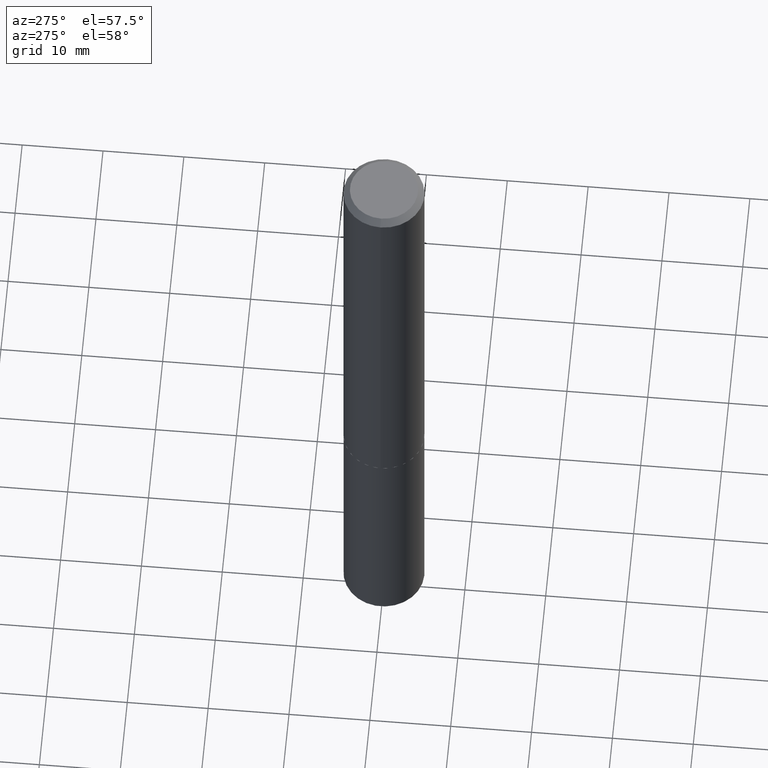
[diagram: clean part render]
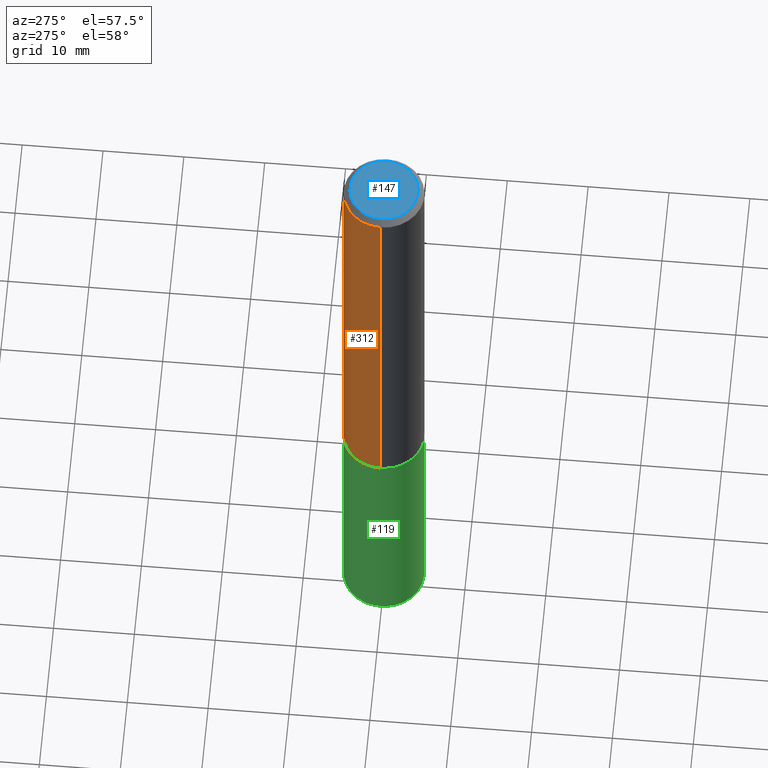
[diagram: same view with three faces highlighted in distinct colors, each labeled with its STEP entity id]
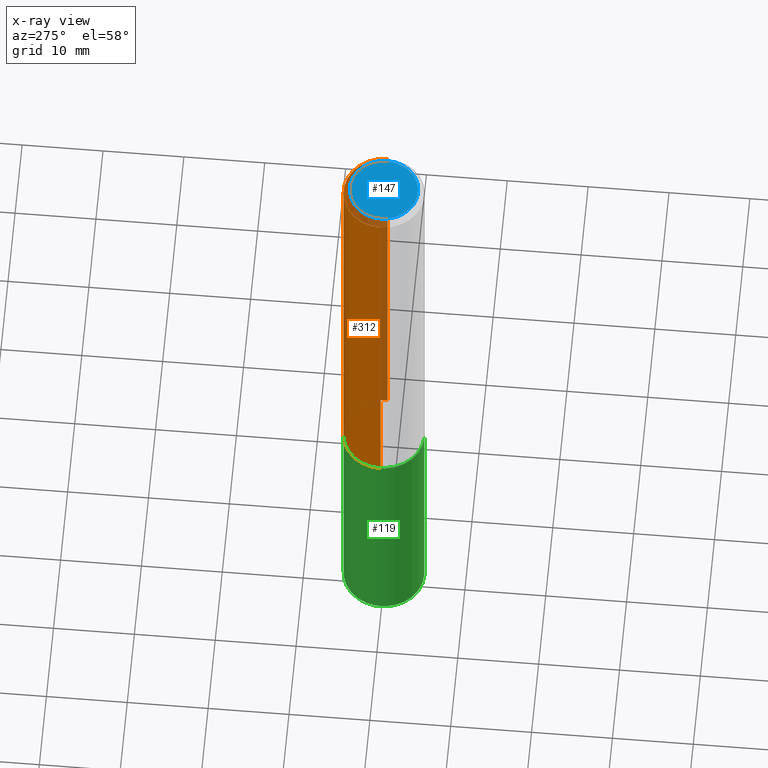
[diagram: x-ray of the same camera — body ghosted, the three highlighted faces saturated]
A machine part, auxiliary view with three faces highlighted in distinct colors.
The next image is the same camera in x-ray (body ghosted, the three faces saturated) — at least one of them is partly hidden behind the body in this view.
Their STEP definitions:

[orange] entity #312 — the highlighted cylindrical surface (partial cylindrical patch) has radius 5 mm, axis along (-0, 0, 1).
#6 = FACE_OUTER_BOUND ( 'NONE', #207, .T. ) ;
#7 = DIRECTION ( 'NONE',  ( -2.445468806185136877E-29, 3.491481338843145188E-15, 1.000000000000000000 ) ) ;
#9 = DIRECTION ( 'NONE',  ( -2.445468806185136597E-29, 3.491481338843145583E-15, 1.000000000000000000 ) ) ;
#21 = ORIENTED_EDGE ( 'NONE', *, *, #296, .F. ) ;
#55 = LINE ( 'NONE', #139, #281 ) ;
#60 = CARTESIAN_POINT ( 'NONE',  ( 0.1968500000000000250, -1.483704994941390709E-15, -0.03125000000000022898 ) ) ;
#63 = DIRECTION ( 'NONE',  ( -2.445468806185136597E-29, 3.491481338843145583E-15, 1.000000000000000000 ) ) ;
#72 = ORIENTED_EDGE ( 'NONE', *, *, #94, .F. ) ;
#75 = LINE ( 'NONE', #307, #152 ) ;
#94 = EDGE_CURVE ( 'NONE', #386, #320, #114, .T. ) ;
#96 = VERTEX_POINT ( 'NONE', #177 ) ;
#114 = CIRCLE ( 'NONE', #254, 0.1968500000000000250 ) ;
#134 = DIRECTION ( 'NONE',  ( -2.445468806185136877E-29, 3.491481338843145188E-15, 1.000000000000000000 ) ) ;
#136 = DIRECTION ( 'NONE',  ( -2.445468806185136597E-29, 3.491481338843145583E-15, 1.000000000000000000 ) ) ;
#139 = CARTESIAN_POINT ( 'NONE',  ( -0.1968500000000001915, 1.398703375343758577E-15, -9.682923725166790684E-30 ) ) ;
#146 = CIRCLE ( 'NONE', #376, 0.1968500000000003303 ) ;
#152 = VECTOR ( 'NONE', #134, 39.37007874015748143 ) ;
#174 = DIRECTION ( 'NONE',  ( 1.000000000000000000, -6.982962677686265922E-15, 0.000000000000000000 ) ) ;
#177 = CARTESIAN_POINT ( 'NONE',  ( -0.1968500000000003303, -6.297219791734301467E-15, -2.204199999999999715 ) ) ;
#179 = VERTEX_POINT ( 'NONE', #191 ) ;
#191 = CARTESIAN_POINT ( 'NONE',  ( 0.1968500000000003303, -9.070519370180605597E-15, -2.204199999999999715 ) ) ;
#207 = EDGE_LOOP ( 'NONE', ( #371, #314, #72, #21 ) ) ;
#220 = CARTESIAN_POINT ( 'NONE',  ( -0.1968500000000000250, -2.503812604114694813E-15, -0.03125000000000022898 ) ) ;
#233 = AXIS2_PLACEMENT_3D ( 'NONE', #370, #136, #365 ) ;
#248 = CYLINDRICAL_SURFACE ( 'NONE', #233, 0.1968500000000001915 ) ;
#254 = AXIS2_PLACEMENT_3D ( 'NONE', #348, #63, #174 ) ;
#258 = EDGE_CURVE ( 'NONE', #179, #96, #146, .T. ) ;
#273 = DIRECTION ( 'NONE',  ( 1.000000000000000000, -6.982962677686271444E-15, 0.000000000000000000 ) ) ;
#281 = VECTOR ( 'NONE', #7, 39.37007874015748143 ) ;
#283 = EDGE_CURVE ( 'NONE', #96, #320, #55, .T. ) ;
#296 = EDGE_CURVE ( 'NONE', #179, #386, #75, .T. ) ;
#307 = CARTESIAN_POINT ( 'NONE',  ( 0.1968500000000001915, -1.374596203102542989E-15, 9.598753983154309266E-30 ) ) ;
#312 = ADVANCED_FACE ( 'NONE', ( #6 ), #248, .T. ) ;
#314 = ORIENTED_EDGE ( 'NONE', *, *, #283, .T. ) ;
#320 = VERTEX_POINT ( 'NONE', #220 ) ;
#336 = CARTESIAN_POINT ( 'NONE',  ( 5.390302342593277355E-29, -7.695923167078060833E-15, -2.204199999999999715 ) ) ;
#348 = CARTESIAN_POINT ( 'NONE',  ( 7.642090019328607917E-31, -1.091087918388491006E-16, -0.03125000000000022898 ) ) ;
#365 = DIRECTION ( 'NONE',  ( 1.000000000000000000, -6.982962677686266711E-15, 4.876176775795935793E-29 ) ) ;
#370 = CARTESIAN_POINT ( 'NONE',  ( 0.000000000000000000, 0.000000000000000000, 0.000000000000000000 ) ) ;
#371 = ORIENTED_EDGE ( 'NONE', *, *, #258, .T. ) ;
#376 = AXIS2_PLACEMENT_3D ( 'NONE', #336, #9, #273 ) ;
#386 = VERTEX_POINT ( 'NONE', #60 ) ;

[blue] entity #147 — the highlighted planar face has unit normal (0, -0, -1).
#35 = DIRECTION ( 'NONE',  ( 1.000000000000000000, -6.982962677686266711E-15, 4.876184333594739131E-29 ) ) ;
#44 = AXIS2_PLACEMENT_3D ( 'NONE', #84, #193, #269 ) ;
#73 = DIRECTION ( 'NONE',  ( -1.000000000000000000, 6.982962677686265922E-15, -4.876176775795935793E-29 ) ) ;
#84 = CARTESIAN_POINT ( 'NONE',  ( -5.839929314523301814E-48, 8.337871319499262079E-34, 2.388061258337385659E-19 ) ) ;
#97 = CARTESIAN_POINT ( 'NONE',  ( -0.1655999999999999972, 1.210933015344269141E-15, 2.388061258254609190E-19 ) ) ;
#116 = ORIENTED_EDGE ( 'NONE', *, *, #145, .T. ) ;
#125 = VERTEX_POINT ( 'NONE', #97 ) ;
#130 = CARTESIAN_POINT ( 'NONE',  ( -2.919964657261650907E-48, 4.168935659749631040E-34, 1.194030629168692829E-19 ) ) ;
#145 = EDGE_CURVE ( 'NONE', #361, #125, #285, .T. ) ;
#147 = ADVANCED_FACE ( 'NONE', ( #295 ), #154, .F. ) ;
#154 = PLANE ( 'NONE',  #337 ) ;
#175 = CARTESIAN_POINT ( 'NONE',  ( -5.839929314523301814E-48, 8.337871319499262079E-34, 2.388061258337385659E-19 ) ) ;
#193 = DIRECTION ( 'NONE',  ( -2.445468806185136597E-29, 3.491481338843145583E-15, 1.000000000000000000 ) ) ;
#203 = ORIENTED_EDGE ( 'NONE', *, *, #266, .T. ) ;
#225 = EDGE_LOOP ( 'NONE', ( #203, #116 ) ) ;
#266 = EDGE_CURVE ( 'NONE', #125, #361, #358, .T. ) ;
#269 = DIRECTION ( 'NONE',  ( 1.000000000000000000, -6.982962677686266711E-15, 4.876184333594739131E-29 ) ) ;
#285 = CIRCLE ( 'NONE', #344, 0.1655999999999999972 ) ;
#292 = DIRECTION ( 'NONE',  ( -2.445468806185136597E-29, 3.491481338843145583E-15, 1.000000000000000000 ) ) ;
#295 = FACE_OUTER_BOUND ( 'NONE', #225, .T. ) ;
#325 = DIRECTION ( 'NONE',  ( 2.438088387897960049E-29, -3.491481338843145188E-15, -1.000000000000000000 ) ) ;
#337 = AXIS2_PLACEMENT_3D ( 'NONE', #130, #325, #73 ) ;
#344 = AXIS2_PLACEMENT_3D ( 'NONE', #175, #292, #35 ) ;
#358 = CIRCLE ( 'NONE', #44, 0.1655999999999999972 ) ;
#361 = VERTEX_POINT ( 'NONE', #375 ) ;
#375 = CARTESIAN_POINT ( 'NONE',  ( 0.1655999999999999972, -1.297848145565570390E-15, 2.388061258423196912E-19 ) ) ;

[green] entity #119 — the highlighted cylindrical surface (partial cylindrical patch) has radius 5 mm, axis along (-0, 0, 1).
#27 = CIRCLE ( 'NONE', #34, 0.1968500000000000250 ) ;
#34 = AXIS2_PLACEMENT_3D ( 'NONE', #262, #240, #93 ) ;
#65 = VERTEX_POINT ( 'NONE', #148 ) ;
#66 = EDGE_CURVE ( 'NONE', #340, #378, #27, .T. ) ;
#70 = VECTOR ( 'NONE', #170, 39.37007874015748143 ) ;
#78 = VECTOR ( 'NONE', #110, 39.37007874015748143 ) ;
#91 = CARTESIAN_POINT ( 'NONE',  ( -1.374596203102487571E-15, -0.1968500000000076855, -2.204699999999998550 ) ) ;
#93 = DIRECTION ( 'NONE',  ( -6.982962677686265133E-15, -1.000000000000000000, 4.163344669033674845E-15 ) ) ;
#110 = DIRECTION ( 'NONE',  ( -2.445539438207697497E-29, 3.491380189766713232E-15, 1.000000000000000000 ) ) ;
#119 = ADVANCED_FACE ( 'NONE', ( #156 ), #267, .T. ) ;
#132 = CARTESIAN_POINT ( 'NONE',  ( 5.391525076996369035E-29, -7.697668907747481548E-15, -2.204699999999999438 ) ) ;
#148 = CARTESIAN_POINT ( 'NONE',  ( 1.398703375343841999E-15, 0.1968499999999880623, -3.451154201469933902 ) ) ;
#156 = FACE_OUTER_BOUND ( 'NONE', #227, .T. ) ;
#159 = EDGE_CURVE ( 'NONE', #65, #374, #367, .T. ) ;
#163 = DIRECTION ( 'NONE',  ( -6.982962677686265133E-15, -1.000000000000000000, 2.775563112689116301E-15 ) ) ;
#165 = CARTESIAN_POINT ( 'NONE',  ( 8.439777984610776122E-29, -1.204951441421109613E-14, -3.451154201469933458 ) ) ;
#170 = DIRECTION ( 'NONE',  ( -2.445539438207697497E-29, 3.491380189766713232E-15, 1.000000000000000000 ) ) ;
#178 = ORIENTED_EDGE ( 'NONE', *, *, #242, .F. ) ;
#189 = CARTESIAN_POINT ( 'NONE',  ( 1.398703375343810839E-15, 0.1968499999999923367, -2.204700000000000326 ) ) ;
#197 = AXIS2_PLACEMENT_3D ( 'NONE', #132, #236, #354 ) ;
#206 = ORIENTED_EDGE ( 'NONE', *, *, #159, .T. ) ;
#221 = LINE ( 'NONE', #189, #78 ) ;
#227 = EDGE_LOOP ( 'NONE', ( #178, #206, #261, #353 ) ) ;
#236 = DIRECTION ( 'NONE',  ( -2.445539438207697497E-29, 3.491380189766713232E-15, 1.000000000000000000 ) ) ;
#240 = DIRECTION ( 'NONE',  ( -2.445539438207697497E-29, 3.491380189766713232E-15, 1.000000000000000000 ) ) ;
#242 = EDGE_CURVE ( 'NONE', #65, #340, #221, .T. ) ;
#245 = DIRECTION ( 'NONE',  ( -2.445539438207697497E-29, 3.491380189766713232E-15, 1.000000000000000000 ) ) ;
#261 = ORIENTED_EDGE ( 'NONE', *, *, #342, .T. ) ;
#262 = CARTESIAN_POINT ( 'NONE',  ( 5.391525076996369035E-29, -7.697668907747481548E-15, -2.204699999999999438 ) ) ;
#267 = CYLINDRICAL_SURFACE ( 'NONE', #197, 0.1968500000000000250 ) ;
#313 = LINE ( 'NONE', #91, #70 ) ;
#323 = AXIS2_PLACEMENT_3D ( 'NONE', #165, #245, #163 ) ;
#338 = CARTESIAN_POINT ( 'NONE',  ( -1.374596203102457792E-15, -0.1968500000000121264, -3.451154201469932570 ) ) ;
#340 = VERTEX_POINT ( 'NONE', #346 ) ;
#341 = CARTESIAN_POINT ( 'NONE',  ( -1.374596203102487571E-15, -0.1968500000000076855, -2.204699999999998550 ) ) ;
#342 = EDGE_CURVE ( 'NONE', #374, #378, #313, .T. ) ;
#346 = CARTESIAN_POINT ( 'NONE',  ( 1.398703375343841801E-15, 0.1968499999999923367, -2.204700000000000326 ) ) ;
#353 = ORIENTED_EDGE ( 'NONE', *, *, #66, .F. ) ;
#354 = DIRECTION ( 'NONE',  ( -6.982962677686265133E-15, -1.000000000000000000, 4.163344669033674845E-15 ) ) ;
#367 = CIRCLE ( 'NONE', #323, 0.1968500000000000250 ) ;
#374 = VERTEX_POINT ( 'NONE', #338 ) ;
#378 = VERTEX_POINT ( 'NONE', #341 ) ;